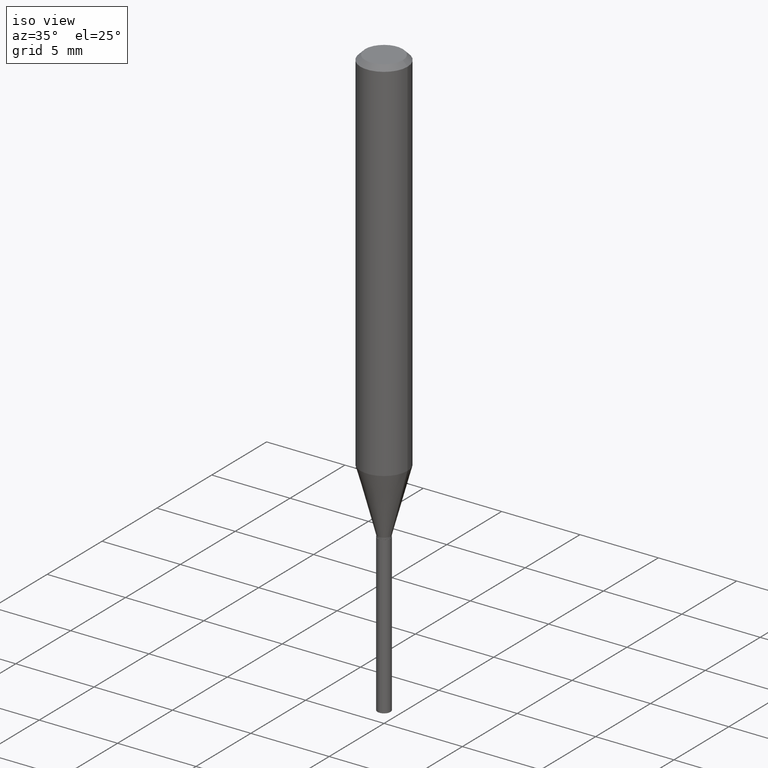
[diagram: clean part render]
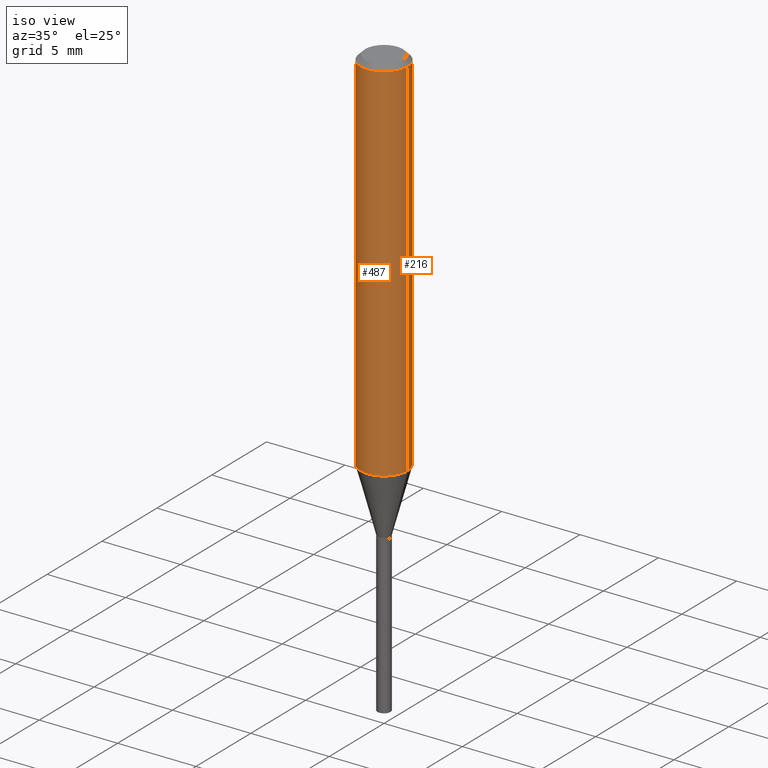
[diagram: same view with one multi-face feature highlighted, each face labeled with its STEP entity id]
A machine part, iso view. The highlighted faces form ONE feature: a constant-radius fillet chain: 2 tangent blend faces with common blend radius 1.4999 mm. The faces share edges in the B-rep.
Their STEP definitions:
[1] entity #487 (Cylinder):
#33 = DIRECTION ( 'NONE',  ( 1.000000000000000000, -6.982962677686266711E-15, 0.000000000000000000 ) ) ;
#35 = CARTESIAN_POINT ( 'NONE',  ( 2.888098660104663328E-31, -4.123439461173779030E-17, -0.01181000000000006871 ) ) ;
#48 = LINE ( 'NONE', #56, #102 ) ;
#52 = DIRECTION ( 'NONE',  ( -2.445468806185136877E-29, 3.491481338843145188E-15, 1.000000000000000000 ) ) ;
#56 = CARTESIAN_POINT ( 'NONE',  ( 0.05905000000000005383, -4.123439461173744271E-16, 2.879382386107502672E-30 ) ) ;
#72 = VECTOR ( 'NONE', #52, 39.37007874015748143 ) ;
#84 = ORIENTED_EDGE ( 'NONE', *, *, #358, .F. ) ;
#86 = ORIENTED_EDGE ( 'NONE', *, *, #432, .T. ) ;
#91 = EDGE_CURVE ( 'NONE', #115, #285, #124, .T. ) ;
#102 = VECTOR ( 'NONE', #164, 39.37007874015748143 ) ;
#115 = VERTEX_POINT ( 'NONE', #453 ) ;
#124 = CIRCLE ( 'NONE', #261, 0.05905000000000010935 ) ;
#135 = DIRECTION ( 'NONE',  ( -2.445468806185136597E-29, 3.491481338843145583E-15, 1.000000000000000000 ) ) ;
#151 = CARTESIAN_POINT ( 'NONE',  ( 2.273295624663911029E-29, -3.245663666252026879E-15, -0.9295950203552949542 ) ) ;
#152 = ORIENTED_EDGE ( 'NONE', *, *, #91, .T. ) ;
#157 = AXIS2_PLACEMENT_3D ( 'NONE', #35, #189, #33 ) ;
#164 = DIRECTION ( 'NONE',  ( -2.445468806185136877E-29, 3.491481338843145188E-15, 1.000000000000000000 ) ) ;
#172 = CYLINDRICAL_SURFACE ( 'NONE', #413, 0.05905000000000005383 ) ;
#181 = ORIENTED_EDGE ( 'NONE', *, *, #289, .F. ) ;
#189 = DIRECTION ( 'NONE',  ( -2.445468806185136597E-29, 3.491481338843145583E-15, 1.000000000000000000 ) ) ;
#213 = FACE_OUTER_BOUND ( 'NONE', #242, .T. ) ;
#242 = EDGE_LOOP ( 'NONE', ( #84, #152, #86, #181 ) ) ;
#261 = AXIS2_PLACEMENT_3D ( 'NONE', #151, #305, #269 ) ;
#269 = DIRECTION ( 'NONE',  ( 1.000000000000000000, -6.982962677686267499E-15, 0.000000000000000000 ) ) ;
#285 = VERTEX_POINT ( 'NONE', #410 ) ;
#289 = EDGE_CURVE ( 'NONE', #339, #388, #405, .T. ) ;
#290 = CARTESIAN_POINT ( 'NONE',  ( 0.000000000000000000, 0.000000000000000000, 0.000000000000000000 ) ) ;
#294 = DIRECTION ( 'NONE',  ( 1.000000000000000000, -6.982962677686266711E-15, 4.876176775795935793E-29 ) ) ;
#305 = DIRECTION ( 'NONE',  ( -2.445468806185136597E-29, 3.491481338843145583E-15, 1.000000000000000000 ) ) ;
#311 = CARTESIAN_POINT ( 'NONE',  ( -0.05904999999999999832, -1.223873544965542219E-15, -0.01181000000000006871 ) ) ;
#320 = LINE ( 'NONE', #472, #72 ) ;
#339 = VERTEX_POINT ( 'NONE', #311 ) ;
#358 = EDGE_CURVE ( 'NONE', #115, #339, #320, .T. ) ;
#388 = VERTEX_POINT ( 'NONE', #437 ) ;
#405 = CIRCLE ( 'NONE', #157, 0.05904999999999999832 ) ;
#410 = CARTESIAN_POINT ( 'NONE',  ( 0.05905000000000010935, -3.658007612369401404E-15, -0.9295950203552949542 ) ) ;
#413 = AXIS2_PLACEMENT_3D ( 'NONE', #290, #135, #294 ) ;
#432 = EDGE_CURVE ( 'NONE', #285, #388, #48, .T. ) ;
#437 = CARTESIAN_POINT ( 'NONE',  ( 0.05904999999999999832, -4.535783407291118600E-16, -0.01181000000000006871 ) ) ;
#453 = CARTESIAN_POINT ( 'NONE',  ( -0.05905000000000010935, -2.826088180785686597E-15, -0.9295950203552949542 ) ) ;
#472 = CARTESIAN_POINT ( 'NONE',  ( -0.05905000000000005383, 4.195754854663395423E-16, -2.904631170795524694E-30 ) ) ;
#487 = ADVANCED_FACE ( 'NONE', ( #213 ), #172, .T. ) ;
[2] entity #216 (Cylinder):
#2 = ORIENTED_EDGE ( 'NONE', *, *, #358, .T. ) ;
#5 = EDGE_CURVE ( 'NONE', #388, #339, #249, .T. ) ;
#20 = EDGE_LOOP ( 'NONE', ( #454, #2, #440, #473 ) ) ;
#48 = LINE ( 'NONE', #56, #102 ) ;
#49 = DIRECTION ( 'NONE',  ( 1.000000000000000000, -6.982962677686266711E-15, 4.876176775795935793E-29 ) ) ;
#51 = AXIS2_PLACEMENT_3D ( 'NONE', #489, #270, #423 ) ;
#52 = DIRECTION ( 'NONE',  ( -2.445468806185136877E-29, 3.491481338843145188E-15, 1.000000000000000000 ) ) ;
#53 = DIRECTION ( 'NONE',  ( -2.445468806185136597E-29, 3.491481338843145583E-15, 1.000000000000000000 ) ) ;
#56 = CARTESIAN_POINT ( 'NONE',  ( 0.05905000000000005383, -4.123439461173744271E-16, 2.879382386107502672E-30 ) ) ;
#72 = VECTOR ( 'NONE', #52, 39.37007874015748143 ) ;
#96 = CARTESIAN_POINT ( 'NONE',  ( 0.000000000000000000, 0.000000000000000000, 0.000000000000000000 ) ) ;
#102 = VECTOR ( 'NONE', #164, 39.37007874015748143 ) ;
#115 = VERTEX_POINT ( 'NONE', #453 ) ;
#119 = DIRECTION ( 'NONE',  ( -2.445468806185136597E-29, 3.491481338843145583E-15, 1.000000000000000000 ) ) ;
#164 = DIRECTION ( 'NONE',  ( -2.445468806185136877E-29, 3.491481338843145188E-15, 1.000000000000000000 ) ) ;
#208 = AXIS2_PLACEMENT_3D ( 'NONE', #96, #53, #49 ) ;
#216 = ADVANCED_FACE ( 'NONE', ( #349 ), #481, .T. ) ;
#222 = AXIS2_PLACEMENT_3D ( 'NONE', #350, #119, #278 ) ;
#240 = EDGE_CURVE ( 'NONE', #285, #115, #484, .T. ) ;
#249 = CIRCLE ( 'NONE', #222, 0.05904999999999999832 ) ;
#270 = DIRECTION ( 'NONE',  ( -2.445468806185136597E-29, 3.491481338843145583E-15, 1.000000000000000000 ) ) ;
#278 = DIRECTION ( 'NONE',  ( 1.000000000000000000, -6.982962677686266711E-15, 0.000000000000000000 ) ) ;
#285 = VERTEX_POINT ( 'NONE', #410 ) ;
#311 = CARTESIAN_POINT ( 'NONE',  ( -0.05904999999999999832, -1.223873544965542219E-15, -0.01181000000000006871 ) ) ;
#320 = LINE ( 'NONE', #472, #72 ) ;
#339 = VERTEX_POINT ( 'NONE', #311 ) ;
#349 = FACE_OUTER_BOUND ( 'NONE', #20, .T. ) ;
#350 = CARTESIAN_POINT ( 'NONE',  ( 2.888098660104663328E-31, -4.123439461173779030E-17, -0.01181000000000006871 ) ) ;
#358 = EDGE_CURVE ( 'NONE', #115, #339, #320, .T. ) ;
#388 = VERTEX_POINT ( 'NONE', #437 ) ;
#410 = CARTESIAN_POINT ( 'NONE',  ( 0.05905000000000010935, -3.658007612369401404E-15, -0.9295950203552949542 ) ) ;
#423 = DIRECTION ( 'NONE',  ( 1.000000000000000000, -6.982962677686267499E-15, 0.000000000000000000 ) ) ;
#432 = EDGE_CURVE ( 'NONE', #285, #388, #48, .T. ) ;
#437 = CARTESIAN_POINT ( 'NONE',  ( 0.05904999999999999832, -4.535783407291118600E-16, -0.01181000000000006871 ) ) ;
#440 = ORIENTED_EDGE ( 'NONE', *, *, #5, .F. ) ;
#453 = CARTESIAN_POINT ( 'NONE',  ( -0.05905000000000010935, -2.826088180785686597E-15, -0.9295950203552949542 ) ) ;
#454 = ORIENTED_EDGE ( 'NONE', *, *, #240, .T. ) ;
#472 = CARTESIAN_POINT ( 'NONE',  ( -0.05905000000000005383, 4.195754854663395423E-16, -2.904631170795524694E-30 ) ) ;
#473 = ORIENTED_EDGE ( 'NONE', *, *, #432, .F. ) ;
#481 = CYLINDRICAL_SURFACE ( 'NONE', #208, 0.05905000000000005383 ) ;
#484 = CIRCLE ( 'NONE', #51, 0.05905000000000010935 ) ;
#489 = CARTESIAN_POINT ( 'NONE',  ( 2.273295624663911029E-29, -3.245663666252026879E-15, -0.9295950203552949542 ) ) ;